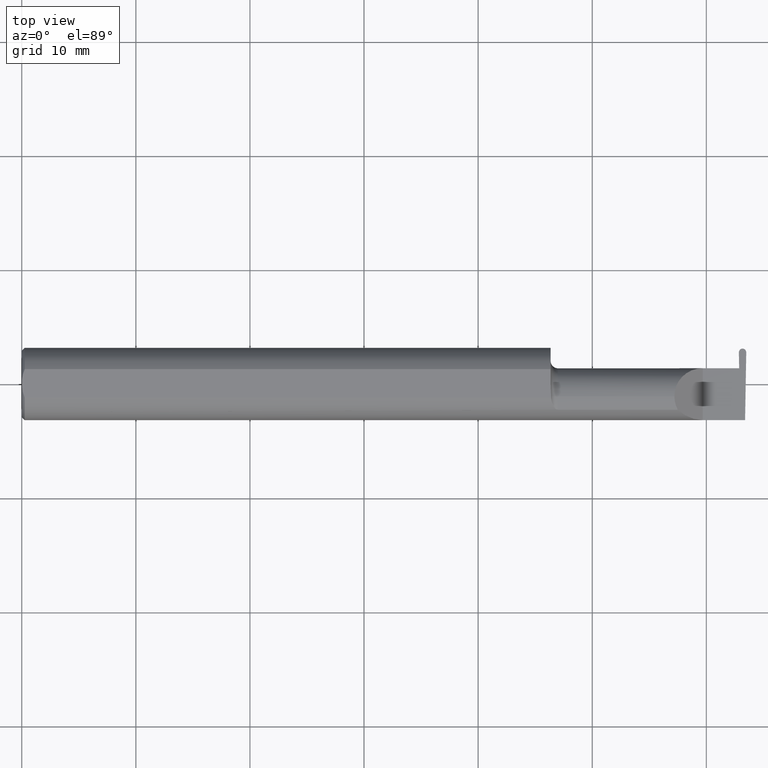
[diagram: clean part render]
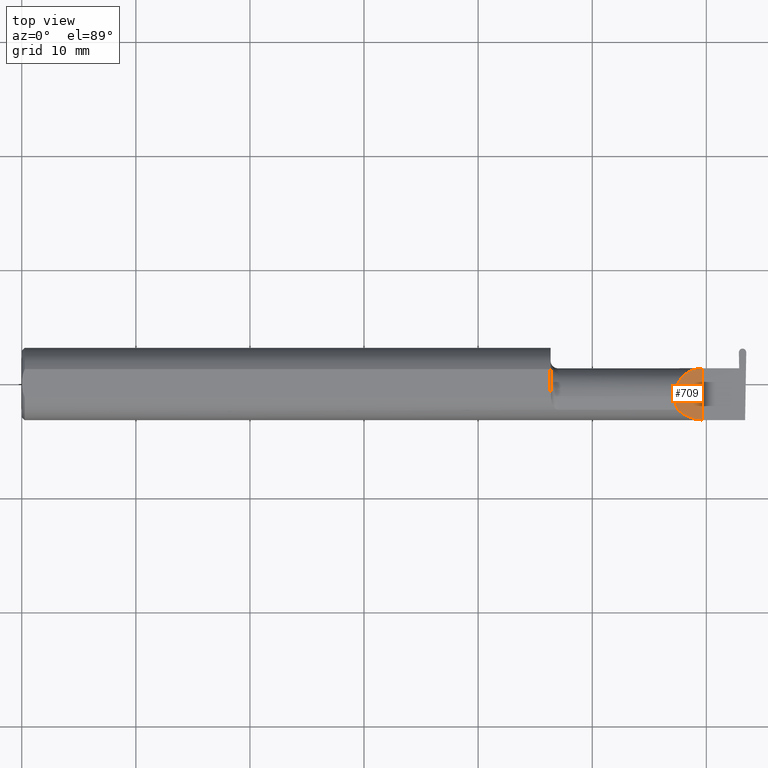
[diagram: same view with one face highlighted and labeled with its STEP entity id]
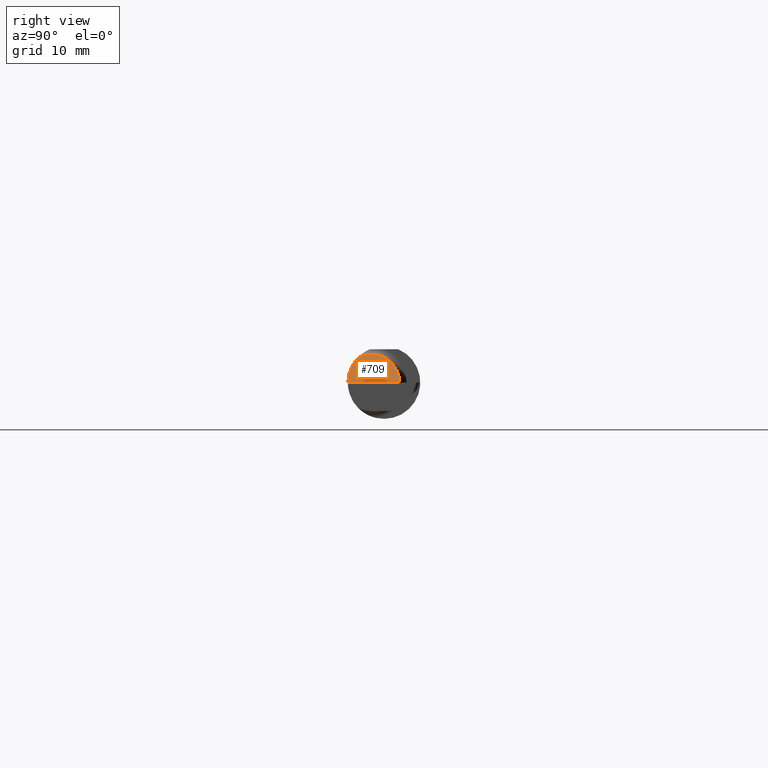
[diagram: same view with one face highlighted and labeled with its STEP entity id]
A machine part, top view. The second image highlights one B-rep face of the part: STEP entity #709.
A second angle (right view) of the same face is appended — the face is thin or edge-on in the first view.
In plain terms, the highlighted planar face has unit normal (-0.7071, 0, -0.7071).
Its self-contained STEP definition (entity closure, byte-faithful):
#2 = EDGE_CURVE ( 'NONE', #615, #495, #666, .T. ) ;
#10 = DIRECTION ( 'NONE',  ( -0.000000000000000000, 1.000000000000000000, -0.000000000000000000 ) ) ;
#32 = CARTESIAN_POINT ( 'NONE',  ( 2.287236475649208511, -0.1128945894460737787, 0.06276352435079125824 ) ) ;
#53 = CARTESIAN_POINT ( 'NONE',  ( 2.251999999999999336, 0.01340707088743663469, 0.09799999999999998990 ) ) ;
#61 = VERTEX_POINT ( 'NONE', #773 ) ;
#73 = CARTESIAN_POINT ( 'NONE',  ( 2.317450832343515454, -0.1250000000000000000, 0.03254916765648425969 ) ) ;
#95 = CARTESIAN_POINT ( 'NONE',  ( 2.350000000000000089, 0.05399999999999997163, 8.266365894244625705E-17 ) ) ;
#108 = EDGE_LOOP ( 'NONE', ( #782, #628, #620, #358 ) ) ;
#111 = LINE ( 'NONE', #309, #271 ) ;
#139 = CARTESIAN_POINT ( 'NONE',  ( 2.255977500337024377, -0.07607783494366260335, 0.09402249966297457351 ) ) ;
#158 = CARTESIAN_POINT ( 'NONE',  ( 2.292592929112562405, 0.05399999999999997163, 0.05740707088743673275 ) ) ;
#182 = EDGE_CURVE ( 'NONE', #635, #61, #809, .T. ) ;
#206 = AXIS2_PLACEMENT_3D ( 'NONE', #253, #499, #439 ) ;
#230 = CARTESIAN_POINT ( 'NONE',  ( 2.263691591372603895, -0.09042045454545419303, 0.08630840862739529162 ) ) ;
#253 = CARTESIAN_POINT ( 'NONE',  ( 2.350000000000000089, -0.2500000000000000555, 1.836970198721028825E-17 ) ) ;
#271 = VECTOR ( 'NONE', #10, 39.37007874015748143 ) ;
#275 = CARTESIAN_POINT ( 'NONE',  ( 2.350000000000000089, -0.1250000000000000278, 1.836970198721028825E-17 ) ) ;
#309 = CARTESIAN_POINT ( 'NONE',  ( 2.350000000000000089, -0.2500000000000000555, 1.836970198721028825E-17 ) ) ;
#358 = ORIENTED_EDGE ( 'NONE', *, *, #182, .F. ) ;
#359 = EDGE_CURVE ( 'NONE', #495, #635, #427, .T. ) ;
#379 = CARTESIAN_POINT ( 'NONE',  ( 2.251999999999998892, -0.04400000000000004602, 0.09800000000000003153 ) ) ;
#410 = CARTESIAN_POINT ( 'NONE',  ( 2.251999999999998892, -0.06028551311893192571, 0.09800000000000003153 ) ) ;
#413 = CARTESIAN_POINT ( 'NONE',  ( 2.350000000000000089, -0.1250000000000000278, 1.836970198721028825E-17 ) ) ;
#427 =( BOUNDED_CURVE ( )  B_SPLINE_CURVE ( 3, ( #781, #139, #410, #525 ),
 .UNSPECIFIED., .F., .T. ) 
 B_SPLINE_CURVE_WITH_KNOTS ( ( 4, 4 ),
 ( 5.789722842198298025, 6.283185307179586232 ),
 .UNSPECIFIED. ) 
 CURVE ( )  GEOMETRIC_REPRESENTATION_ITEM ( )  RATIONAL_B_SPLINE_CURVE ( ( 1.000000000000000000, 0.9798106333074688701, 0.9798106333074688701, 1.000000000000000000 ) ) 
 REPRESENTATION_ITEM ( '' )  );
#439 = DIRECTION ( 'NONE',  ( -0.7071067811865511255, 0.000000000000000000, 0.7071067811865439090 ) ) ;
#470 = CARTESIAN_POINT ( 'NONE',  ( 2.263691591372603895, -0.09042045454545419303, 0.08630840862739529162 ) ) ;
#495 = VERTEX_POINT ( 'NONE', #230 ) ;
#499 = DIRECTION ( 'NONE',  ( -0.7071067811865439090, 0.000000000000000000, -0.7071067811865511255 ) ) ;
#525 = CARTESIAN_POINT ( 'NONE',  ( 2.251999999999998892, -0.04400000000000004602, 0.09800000000000003153 ) ) ;
#563 = FACE_OUTER_BOUND ( 'NONE', #108, .T. ) ;
#612 = CARTESIAN_POINT ( 'NONE',  ( 2.251999999999998892, -0.04400000000000004602, 0.09800000000000003153 ) ) ;
#615 = VERTEX_POINT ( 'NONE', #413 ) ;
#620 = ORIENTED_EDGE ( 'NONE', *, *, #754, .T. ) ;
#628 = ORIENTED_EDGE ( 'NONE', *, *, #2, .F. ) ;
#635 = VERTEX_POINT ( 'NONE', #379 ) ;
#666 =( BOUNDED_CURVE ( )  B_SPLINE_CURVE ( 3, ( #275, #73, #32, #470 ),
 .UNSPECIFIED., .F., .F. ) 
 B_SPLINE_CURVE_WITH_KNOTS ( ( 4, 4 ),
 ( 4.712388980384689674, 5.474523801125208422 ),
 .UNSPECIFIED. ) 
 CURVE ( )  GEOMETRIC_REPRESENTATION_ITEM ( )  RATIONAL_B_SPLINE_CURVE ( ( 1.000000000000000000, 0.9521787881681380572, 0.9521787881681380572, 1.000000000000000000 ) ) 
 REPRESENTATION_ITEM ( '' )  );
#709 = ADVANCED_FACE ( 'NONE', ( #563 ), #810, .F. ) ;
#754 = EDGE_CURVE ( 'NONE', #615, #61, #111, .T. ) ;
#773 = CARTESIAN_POINT ( 'NONE',  ( 2.350000000000000089, 0.05399999999999997163, 8.266365894244625705E-17 ) ) ;
#781 = CARTESIAN_POINT ( 'NONE',  ( 2.263691591372603895, -0.09042045454545419303, 0.08630840862739529162 ) ) ;
#782 = ORIENTED_EDGE ( 'NONE', *, *, #359, .F. ) ;
#809 =( BOUNDED_CURVE ( )  B_SPLINE_CURVE ( 3, ( #612, #53, #158, #95 ),
 .UNSPECIFIED., .F., .T. ) 
 B_SPLINE_CURVE_WITH_KNOTS ( ( 4, 4 ),
 ( 0.000000000000000000, 1.570796326794896114 ),
 .UNSPECIFIED. ) 
 CURVE ( )  GEOMETRIC_REPRESENTATION_ITEM ( )  RATIONAL_B_SPLINE_CURVE ( ( 1.000000000000000000, 0.8047378541243650485, 0.8047378541243650485, 1.000000000000000000 ) ) 
 REPRESENTATION_ITEM ( '' )  );
#810 = PLANE ( 'NONE',  #206 ) ;